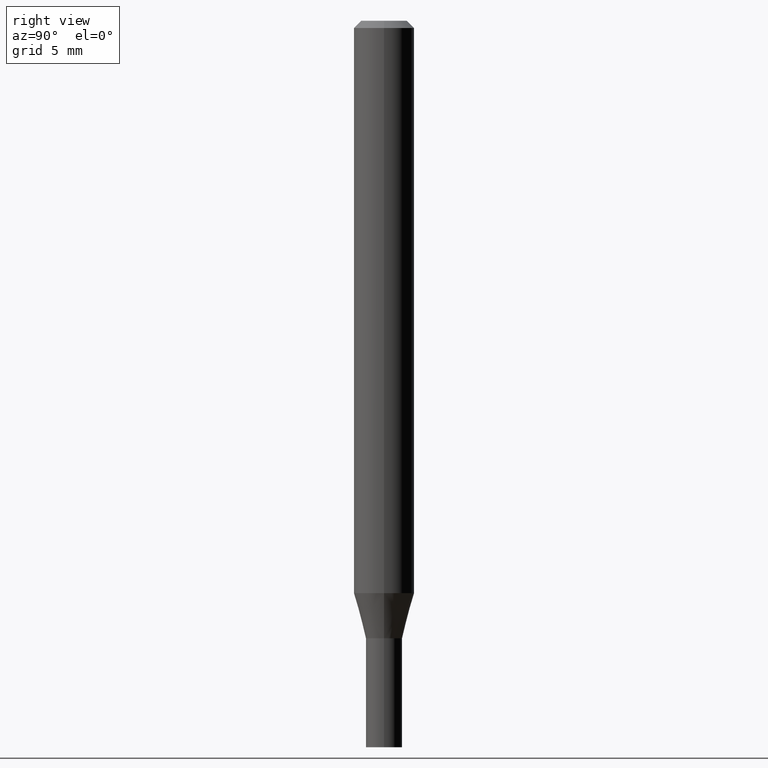
[diagram: clean part render]
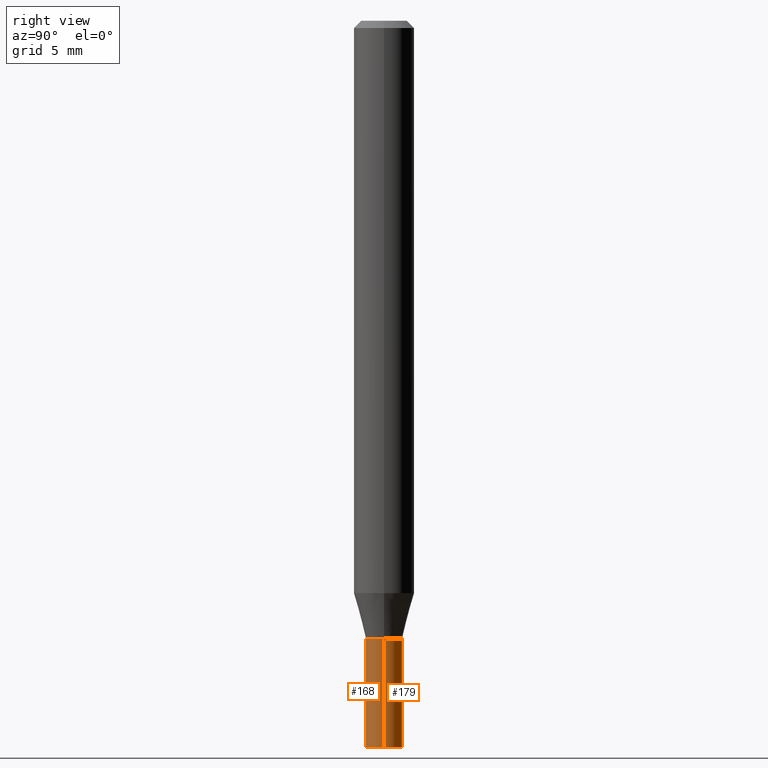
[diagram: same view with one multi-face feature highlighted, each face labeled with its STEP entity id]
A machine part, right view. The highlighted faces form ONE feature: a constant-radius fillet chain: 2 tangent blend faces with common blend radius 0.9525 mm. The faces share edges in the B-rep.
Their STEP definitions:
[1] entity #168 (Cylinder):
#7 = CARTESIAN_POINT ( 'NONE',  ( 3.668203209277704895E-29, -5.237222008264718177E-15, -1.500000000000000222 ) ) ;
#32 = CARTESIAN_POINT ( 'NONE',  ( 0.03749999999999999861, -2.618611004132350016E-16, 1.828566290923475922E-30 ) ) ;
#34 = VERTEX_POINT ( 'NONE', #437 ) ;
#40 = VECTOR ( 'NONE', #233, 39.37007874015748143 ) ;
#49 = CARTESIAN_POINT ( 'NONE',  ( -0.03749999999999999861, 2.664535259100375598E-16, -1.844600658845589458E-30 ) ) ;
#75 = VECTOR ( 'NONE', #239, 39.37007874015748143 ) ;
#83 = EDGE_CURVE ( 'NONE', #355, #313, #258, .T. ) ;
#94 = VERTEX_POINT ( 'NONE', #112 ) ;
#112 = CARTESIAN_POINT ( 'NONE',  ( -0.03749999999999999861, -4.577976831734827473E-15, -1.275000000000000133 ) ) ;
#150 = DIRECTION ( 'NONE',  ( -2.445468806185136597E-29, 3.491481338843145583E-15, 1.000000000000000000 ) ) ;
#168 = ADVANCED_FACE ( 'NONE', ( #319 ), #384, .T. ) ;
#176 = AXIS2_PLACEMENT_3D ( 'NONE', #254, #252, #181 ) ;
#181 = DIRECTION ( 'NONE',  ( 1.000000000000000000, -6.982962677686268288E-15, 0.000000000000000000 ) ) ;
#188 = ORIENTED_EDGE ( 'NONE', *, *, #253, .T. ) ;
#193 = LINE ( 'NONE', #32, #75 ) ;
#196 = DIRECTION ( 'NONE',  ( 1.000000000000000000, -6.982962677686266711E-15, 4.876176775795935793E-29 ) ) ;
#207 = DIRECTION ( 'NONE',  ( -2.445468806185136597E-29, 3.491481338843145583E-15, 1.000000000000000000 ) ) ;
#220 = ORIENTED_EDGE ( 'NONE', *, *, #429, .F. ) ;
#233 = DIRECTION ( 'NONE',  ( -2.445468806185136877E-29, 3.491481338843145188E-15, 1.000000000000000000 ) ) ;
#239 = DIRECTION ( 'NONE',  ( -2.445468806185136877E-29, 3.491481338843145188E-15, 1.000000000000000000 ) ) ;
#242 = ORIENTED_EDGE ( 'NONE', *, *, #262, .F. ) ;
#252 = DIRECTION ( 'NONE',  ( -2.445468806185136597E-29, 3.491481338843145583E-15, 1.000000000000000000 ) ) ;
#253 = EDGE_CURVE ( 'NONE', #313, #34, #193, .T. ) ;
#254 = CARTESIAN_POINT ( 'NONE',  ( 3.117972727886049049E-29, -4.451638707025011594E-15, -1.275000000000000133 ) ) ;
#258 = CIRCLE ( 'NONE', #390, 0.03749999999999999861 ) ;
#262 = EDGE_CURVE ( 'NONE', #355, #94, #341, .T. ) ;
#269 = EDGE_LOOP ( 'NONE', ( #242, #424, #188, #220 ) ) ;
#296 = DIRECTION ( 'NONE',  ( 1.000000000000000000, -6.982962677686268288E-15, 0.000000000000000000 ) ) ;
#313 = VERTEX_POINT ( 'NONE', #448 ) ;
#314 = CARTESIAN_POINT ( 'NONE',  ( -0.03749999999999999861, -4.577976831734827473E-15, -1.500000000000000222 ) ) ;
#319 = FACE_OUTER_BOUND ( 'NONE', #269, .T. ) ;
#341 = LINE ( 'NONE', #49, #40 ) ;
#355 = VERTEX_POINT ( 'NONE', #314 ) ;
#357 = CIRCLE ( 'NONE', #176, 0.03749999999999999861 ) ;
#370 = CARTESIAN_POINT ( 'NONE',  ( 0.000000000000000000, 0.000000000000000000, 0.000000000000000000 ) ) ;
#384 = CYLINDRICAL_SURFACE ( 'NONE', #418, 0.03749999999999999861 ) ;
#390 = AXIS2_PLACEMENT_3D ( 'NONE', #7, #150, #296 ) ;
#418 = AXIS2_PLACEMENT_3D ( 'NONE', #370, #207, #196 ) ;
#424 = ORIENTED_EDGE ( 'NONE', *, *, #83, .T. ) ;
#429 = EDGE_CURVE ( 'NONE', #94, #34, #357, .T. ) ;
#437 = CARTESIAN_POINT ( 'NONE',  ( 0.03749999999999999861, -4.713499807438246596E-15, -1.275000000000000133 ) ) ;
#448 = CARTESIAN_POINT ( 'NONE',  ( 0.03749999999999999861, -5.499083108677953967E-15, -1.500000000000000222 ) ) ;
[2] entity #179 (Cylinder):
#22 = ORIENTED_EDGE ( 'NONE', *, *, #253, .F. ) ;
#24 = DIRECTION ( 'NONE',  ( 1.000000000000000000, -6.982962677686268288E-15, 0.000000000000000000 ) ) ;
#28 = DIRECTION ( 'NONE',  ( 1.000000000000000000, -6.982962677686266711E-15, 4.876176775795935793E-29 ) ) ;
#29 = ORIENTED_EDGE ( 'NONE', *, *, #262, .T. ) ;
#32 = CARTESIAN_POINT ( 'NONE',  ( 0.03749999999999999861, -2.618611004132350016E-16, 1.828566290923475922E-30 ) ) ;
#34 = VERTEX_POINT ( 'NONE', #437 ) ;
#40 = VECTOR ( 'NONE', #233, 39.37007874015748143 ) ;
#49 = CARTESIAN_POINT ( 'NONE',  ( -0.03749999999999999861, 2.664535259100375598E-16, -1.844600658845589458E-30 ) ) ;
#69 = CIRCLE ( 'NONE', #417, 0.03749999999999999861 ) ;
#75 = VECTOR ( 'NONE', #239, 39.37007874015748143 ) ;
#88 = DIRECTION ( 'NONE',  ( 1.000000000000000000, -6.982962677686268288E-15, 0.000000000000000000 ) ) ;
#94 = VERTEX_POINT ( 'NONE', #112 ) ;
#112 = CARTESIAN_POINT ( 'NONE',  ( -0.03749999999999999861, -4.577976831734827473E-15, -1.275000000000000133 ) ) ;
#119 = AXIS2_PLACEMENT_3D ( 'NONE', #164, #376, #28 ) ;
#126 = EDGE_CURVE ( 'NONE', #313, #355, #69, .T. ) ;
#136 = DIRECTION ( 'NONE',  ( -2.445468806185136597E-29, 3.491481338843145583E-15, 1.000000000000000000 ) ) ;
#152 = EDGE_CURVE ( 'NONE', #34, #94, #259, .T. ) ;
#164 = CARTESIAN_POINT ( 'NONE',  ( 0.000000000000000000, 0.000000000000000000, 0.000000000000000000 ) ) ;
#179 = ADVANCED_FACE ( 'NONE', ( #444 ), #381, .T. ) ;
#193 = LINE ( 'NONE', #32, #75 ) ;
#229 = EDGE_LOOP ( 'NONE', ( #373, #29, #420, #22 ) ) ;
#233 = DIRECTION ( 'NONE',  ( -2.445468806185136877E-29, 3.491481338843145188E-15, 1.000000000000000000 ) ) ;
#239 = DIRECTION ( 'NONE',  ( -2.445468806185136877E-29, 3.491481338843145188E-15, 1.000000000000000000 ) ) ;
#253 = EDGE_CURVE ( 'NONE', #313, #34, #193, .T. ) ;
#259 = CIRCLE ( 'NONE', #392, 0.03749999999999999861 ) ;
#262 = EDGE_CURVE ( 'NONE', #355, #94, #341, .T. ) ;
#271 = CARTESIAN_POINT ( 'NONE',  ( 3.668203209277704895E-29, -5.237222008264718177E-15, -1.500000000000000222 ) ) ;
#279 = DIRECTION ( 'NONE',  ( -2.445468806185136597E-29, 3.491481338843145583E-15, 1.000000000000000000 ) ) ;
#281 = CARTESIAN_POINT ( 'NONE',  ( 3.117972727886049049E-29, -4.451638707025011594E-15, -1.275000000000000133 ) ) ;
#313 = VERTEX_POINT ( 'NONE', #448 ) ;
#314 = CARTESIAN_POINT ( 'NONE',  ( -0.03749999999999999861, -4.577976831734827473E-15, -1.500000000000000222 ) ) ;
#341 = LINE ( 'NONE', #49, #40 ) ;
#355 = VERTEX_POINT ( 'NONE', #314 ) ;
#373 = ORIENTED_EDGE ( 'NONE', *, *, #126, .T. ) ;
#376 = DIRECTION ( 'NONE',  ( -2.445468806185136597E-29, 3.491481338843145583E-15, 1.000000000000000000 ) ) ;
#381 = CYLINDRICAL_SURFACE ( 'NONE', #119, 0.03749999999999999861 ) ;
#392 = AXIS2_PLACEMENT_3D ( 'NONE', #281, #279, #88 ) ;
#417 = AXIS2_PLACEMENT_3D ( 'NONE', #271, #136, #24 ) ;
#420 = ORIENTED_EDGE ( 'NONE', *, *, #152, .F. ) ;
#437 = CARTESIAN_POINT ( 'NONE',  ( 0.03749999999999999861, -4.713499807438246596E-15, -1.275000000000000133 ) ) ;
#444 = FACE_OUTER_BOUND ( 'NONE', #229, .T. ) ;
#448 = CARTESIAN_POINT ( 'NONE',  ( 0.03749999999999999861, -5.499083108677953967E-15, -1.500000000000000222 ) ) ;